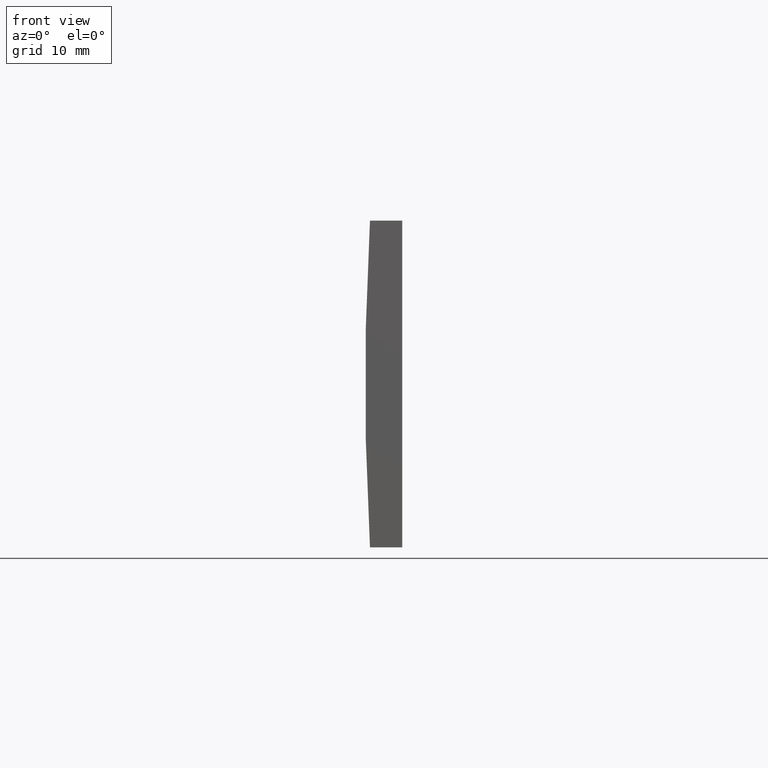
[diagram: clean part render]
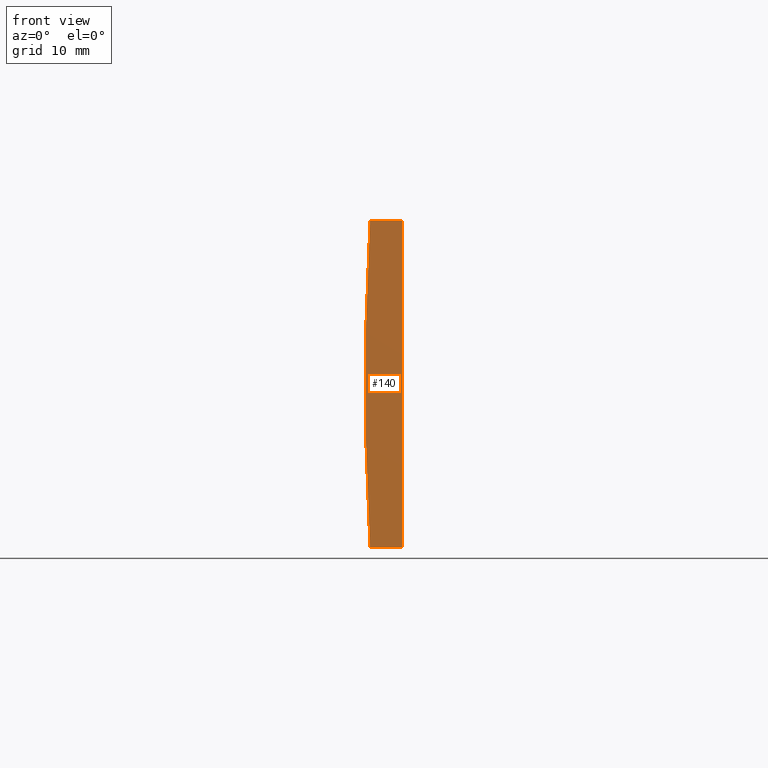
[diagram: same view with one face highlighted and labeled with its STEP entity id]
A machine part, front view. The second image highlights one B-rep face of the part: STEP entity #140.
In plain terms, the highlighted planar face has unit normal (0, 1, 0).
Its self-contained STEP definition (entity closure, byte-faithful):
#1 = VERTEX_POINT ( 'NONE', #164 ) ;
#7 = CARTESIAN_POINT ( 'NONE',  ( 4.355204334851265500, 0.0000000000000000000, 4.286263797015675000E-017 ) ) ;
#12 = DIRECTION ( 'NONE',  ( 0.0000000000000000000, 1.000000000000000000, 0.0000000000000000000 ) ) ;
#16 = VECTOR ( 'NONE', #125, 1000.000000000000000 ) ;
#20 = PLANE ( 'NONE',  #180 ) ;
#24 = VERTEX_POINT ( 'NONE', #161 ) ;
#32 = CARTESIAN_POINT ( 'NONE',  ( 4.355204334851265500, 0.0000000000000000000, 4.286263797015675000E-017 ) ) ;
#39 = DIRECTION ( 'NONE',  ( 0.0000000000000000000, -0.0000000000000000000, 1.000000000000000000 ) ) ;
#41 = EDGE_CURVE ( 'NONE', #169, #85, #168, .T. ) ;
#42 = EDGE_LOOP ( 'NONE', ( #75, #105, #141, #84 ) ) ;
#55 = DIRECTION ( 'NONE',  ( 1.000000000000000000, 0.0000000000000000000, 0.0000000000000000000 ) ) ;
#56 = VECTOR ( 'NONE', #192, 1000.000000000000000 ) ;
#65 = CARTESIAN_POINT ( 'NONE',  ( -250.7447956651487300, 0.0000000000000000000, 15.00000000000000000 ) ) ;
#75 = ORIENTED_EDGE ( 'NONE', *, *, #188, .F. ) ;
#78 = CIRCLE ( 'NONE', #193, 258.5000000000000000 ) ;
#84 = ORIENTED_EDGE ( 'NONE', *, *, #41, .F. ) ;
#85 = VERTEX_POINT ( 'NONE', #65 ) ;
#87 = CARTESIAN_POINT ( 'NONE',  ( -250.7447956651487300, 0.0000000000000000000, -14.99999999999997200 ) ) ;
#94 = FACE_OUTER_BOUND ( 'NONE', #42, .T. ) ;
#102 = CARTESIAN_POINT ( 'NONE',  ( -253.7092256046504700, 0.0000000000000000000, 15.00000000000000000 ) ) ;
#105 = ORIENTED_EDGE ( 'NONE', *, *, #124, .F. ) ;
#107 = CARTESIAN_POINT ( 'NONE',  ( -253.7092256046504700, 0.0000000000000000000, 15.00000000000000000 ) ) ;
#108 = DIRECTION ( 'NONE',  ( 0.0000000000000000000, 1.000000000000000000, 0.0000000000000000000 ) ) ;
#110 = DIRECTION ( 'NONE',  ( 0.0000000000000000000, 0.0000000000000000000, 1.000000000000000000 ) ) ;
#120 = CARTESIAN_POINT ( 'NONE',  ( -253.7092256046504700, 0.0000000000000000000, -15.00000000000000000 ) ) ;
#122 = LINE ( 'NONE', #87, #56 ) ;
#124 = EDGE_CURVE ( 'NONE', #1, #24, #178, .T. ) ;
#125 = DIRECTION ( 'NONE',  ( -1.000000000000000000, -0.0000000000000000000, -9.362871169859394600E-015 ) ) ;
#140 = ADVANCED_FACE ( 'NONE', ( #94 ), #20, .F. ) ;
#141 = ORIENTED_EDGE ( 'NONE', *, *, #160, .F. ) ;
#160 = EDGE_CURVE ( 'NONE', #85, #1, #122, .T. ) ;
#161 = CARTESIAN_POINT ( 'NONE',  ( -253.7092256046504700, 0.0000000000000000000, -15.00000000000000000 ) ) ;
#164 = CARTESIAN_POINT ( 'NONE',  ( -250.7447956651487300, 0.0000000000000000000, -14.99999999999997200 ) ) ;
#165 = VECTOR ( 'NONE', #55, 1000.000000000000000 ) ;
#168 = LINE ( 'NONE', #102, #165 ) ;
#169 = VERTEX_POINT ( 'NONE', #107 ) ;
#178 = LINE ( 'NONE', #120, #16 ) ;
#180 = AXIS2_PLACEMENT_3D ( 'NONE', #7, #12, #39 ) ;
#188 = EDGE_CURVE ( 'NONE', #24, #169, #78, .T. ) ;
#192 = DIRECTION ( 'NONE',  ( -0.0000000000000000000, -0.0000000000000000000, -1.000000000000000000 ) ) ;
#193 = AXIS2_PLACEMENT_3D ( 'NONE', #32, #108, #110 ) ;